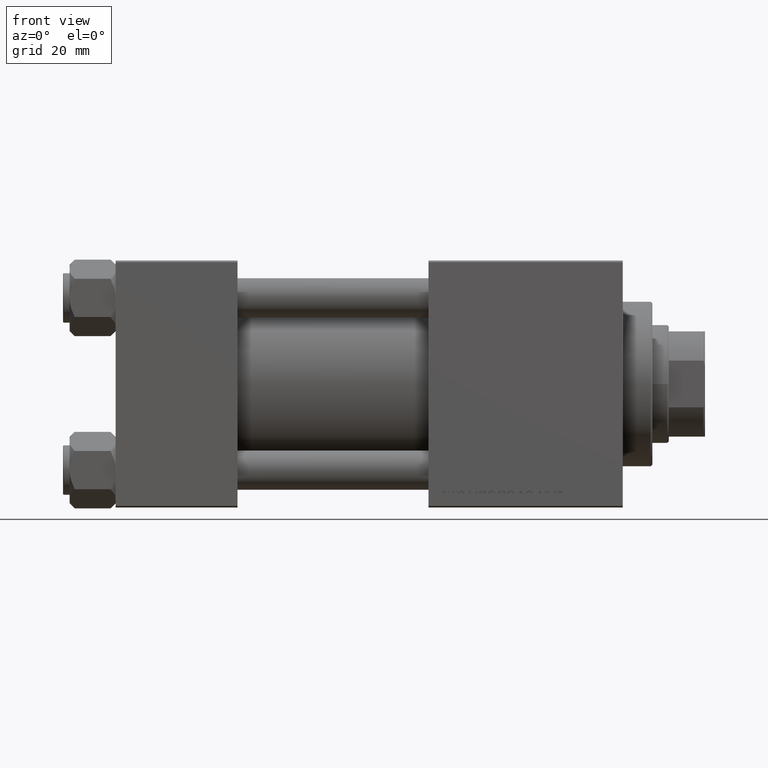
[diagram: clean part render]
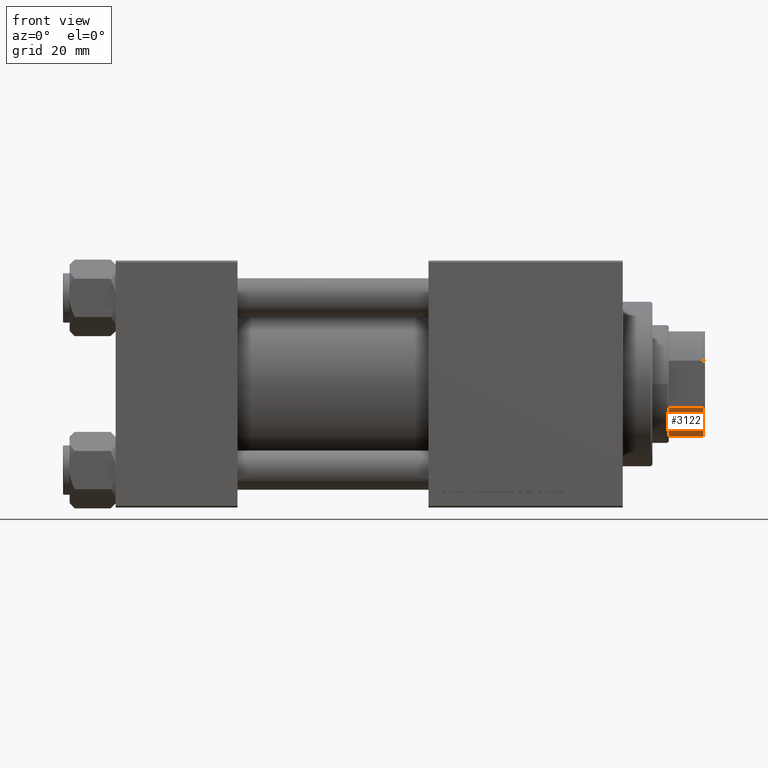
[diagram: same view with one face highlighted and labeled with its STEP entity id]
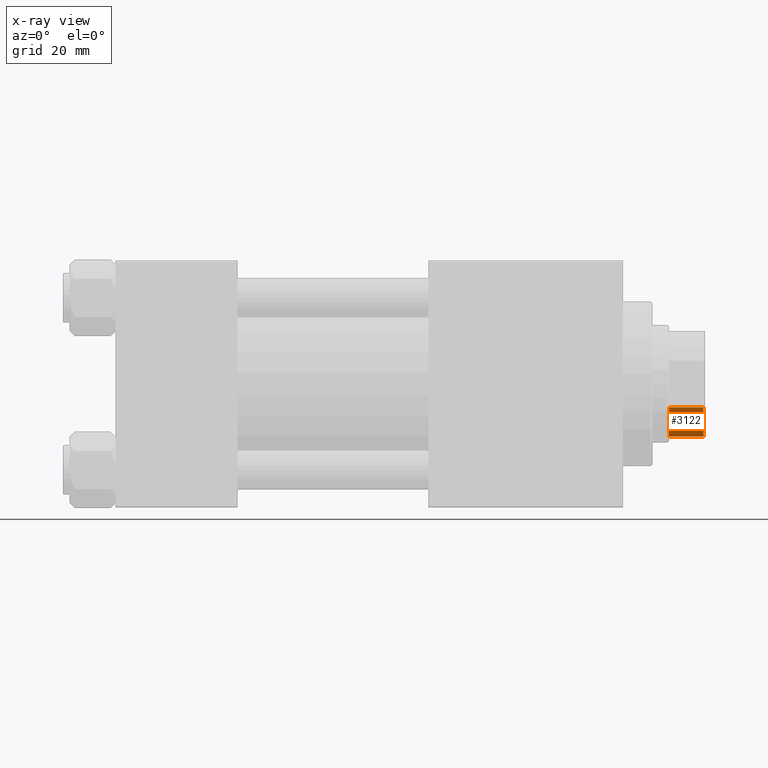
[diagram: x-ray of the same camera — body ghosted, the highlighted face saturated]
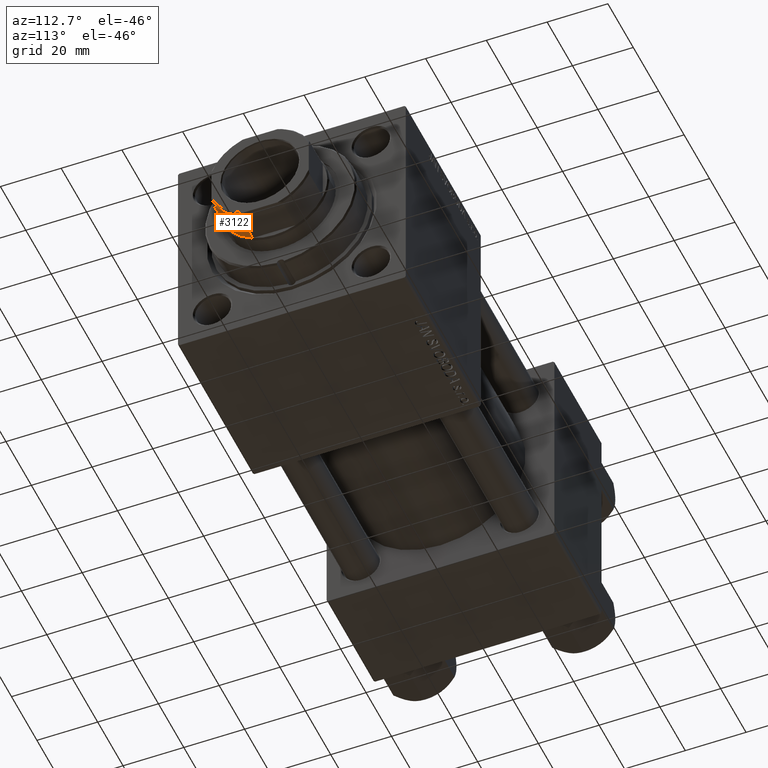
[diagram: same view with one face highlighted and labeled with its STEP entity id]
A machine part, front view. The second image highlights one B-rep face of the part: STEP entity #3122.
The next image is the same camera in x-ray: the body ghosted, the highlighted face saturated — about 0% of this face is hidden behind the body in this view.
A second angle (auxiliary view) of the same face is appended — the face is thin or edge-on in the first view.
In plain terms, the highlighted cylindrical surface (partial cylindrical patch) has radius 17.5 mm, axis along (1, 0, 0).
Its self-contained STEP definition (entity closure, byte-faithful):
#2070 = EDGE_CURVE ( 'NONE', #32037, #9367, #8229, .T. ) ;
#3122 = ADVANCED_FACE ( 'NONE', ( #34765 ), #15382, .T. ) ;
#3242 = ORIENTED_EDGE ( 'NONE', *, *, #38673, .F. ) ;
#5911 = CARTESIAN_POINT ( 'NONE',  ( 15.99999999999999645, 7.088723439378923352, -0.001000000000001000089 ) ) ;
#6641 = VECTOR ( 'NONE', #18278, 1000.000000000000000 ) ;
#7666 = EDGE_CURVE ( 'NONE', #9367, #36481, #10617, .T. ) ;
#8229 = CIRCLE ( 'NONE', #27771, 17.50000000000003908 ) ;
#8664 = CARTESIAN_POINT ( 'NONE',  ( 15.99999999999999645, 7.088723439378923352, 131.0000000000000284 ) ) ;
#9028 = DIRECTION ( 'NONE',  ( 0.000000000000000000, 0.000000000000000000, 1.000000000000000000 ) ) ;
#9367 = VERTEX_POINT ( 'NONE', #29631 ) ;
#10617 = LINE ( 'NONE', #37647, #6641 ) ;
#11783 = DIRECTION ( 'NONE',  ( 1.000000000000000000, -5.329070518200752183E-15, 0.000000000000000000 ) ) ;
#13105 = DIRECTION ( 'NONE',  ( 1.000000000000000000, 0.000000000000000000, 0.000000000000000000 ) ) ;
#14330 = VERTEX_POINT ( 'NONE', #43022 ) ;
#14876 = DIRECTION ( 'NONE',  ( 1.000000000000000000, 0.000000000000000000, 0.000000000000000000 ) ) ;
#15382 = CYLINDRICAL_SURFACE ( 'NONE', #44042, 17.50000000000000000 ) ;
#17726 = CARTESIAN_POINT ( 'NONE',  ( 7.088723439378914470, 16.00000000000000000, 141.5000000000000284 ) ) ;
#18170 = LINE ( 'NONE', #5911, #23662 ) ;
#18278 = DIRECTION ( 'NONE',  ( -0.000000000000000000, -0.000000000000000000, 1.000000000000000000 ) ) ;
#18969 = CARTESIAN_POINT ( 'NONE',  ( 0.000000000000000000, 0.000000000000000000, -0.001000000000001000089 ) ) ;
#23038 = DIRECTION ( 'NONE',  ( -0.000000000000000000, -0.000000000000000000, 1.000000000000000000 ) ) ;
#23662 = VECTOR ( 'NONE', #33973, 1000.000000000000000 ) ;
#24002 = DIRECTION ( 'NONE',  ( -0.000000000000000000, -0.000000000000000000, -1.000000000000000000 ) ) ;
#27771 = AXIS2_PLACEMENT_3D ( 'NONE', #32235, #9028, #13105 ) ;
#29631 = CARTESIAN_POINT ( 'NONE',  ( 7.088723439378916247, 16.00000000000000355, 131.0000000000000284 ) ) ;
#30206 = EDGE_LOOP ( 'NONE', ( #40911, #34794, #3242, #42218 ) ) ;
#32037 = VERTEX_POINT ( 'NONE', #8664 ) ;
#32235 = CARTESIAN_POINT ( 'NONE',  ( 0.000000000000000000, 0.000000000000000000, 131.0000000000000000 ) ) ;
#33362 = AXIS2_PLACEMENT_3D ( 'NONE', #35246, #24002, #11783 ) ;
#33973 = DIRECTION ( 'NONE',  ( -0.000000000000000000, -0.000000000000000000, 1.000000000000000000 ) ) ;
#34765 = FACE_OUTER_BOUND ( 'NONE', #30206, .T. ) ;
#34794 = ORIENTED_EDGE ( 'NONE', *, *, #45693, .T. ) ;
#35246 = CARTESIAN_POINT ( 'NONE',  ( 0.000000000000000000, 0.000000000000000000, 141.5000000000000284 ) ) ;
#36481 = VERTEX_POINT ( 'NONE', #17726 ) ;
#37647 = CARTESIAN_POINT ( 'NONE',  ( 7.088723439378914470, 16.00000000000000000, -0.001000000000001000089 ) ) ;
#38673 = EDGE_CURVE ( 'NONE', #32037, #14330, #18170, .T. ) ;
#40911 = ORIENTED_EDGE ( 'NONE', *, *, #7666, .T. ) ;
#42218 = ORIENTED_EDGE ( 'NONE', *, *, #2070, .T. ) ;
#43022 = CARTESIAN_POINT ( 'NONE',  ( 15.99999999999999645, 7.088723439378923352, 141.5000000000000284 ) ) ;
#44042 = AXIS2_PLACEMENT_3D ( 'NONE', #18969, #23038, #14876 ) ;
#45693 = EDGE_CURVE ( 'NONE', #36481, #14330, #48001, .T. ) ;
#48001 = CIRCLE ( 'NONE', #33362, 17.50000000000000000 ) ;